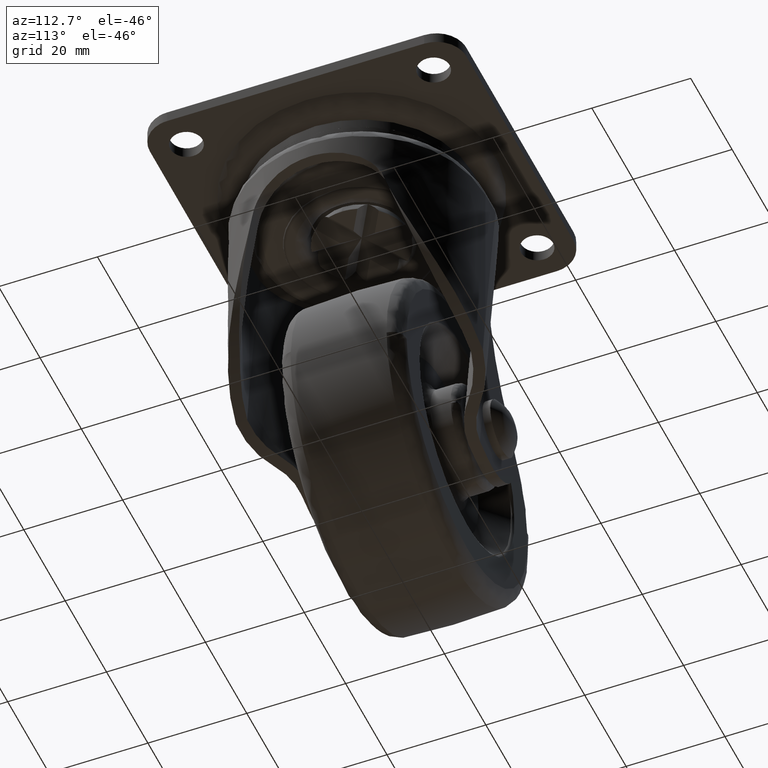
[diagram: clean part render]
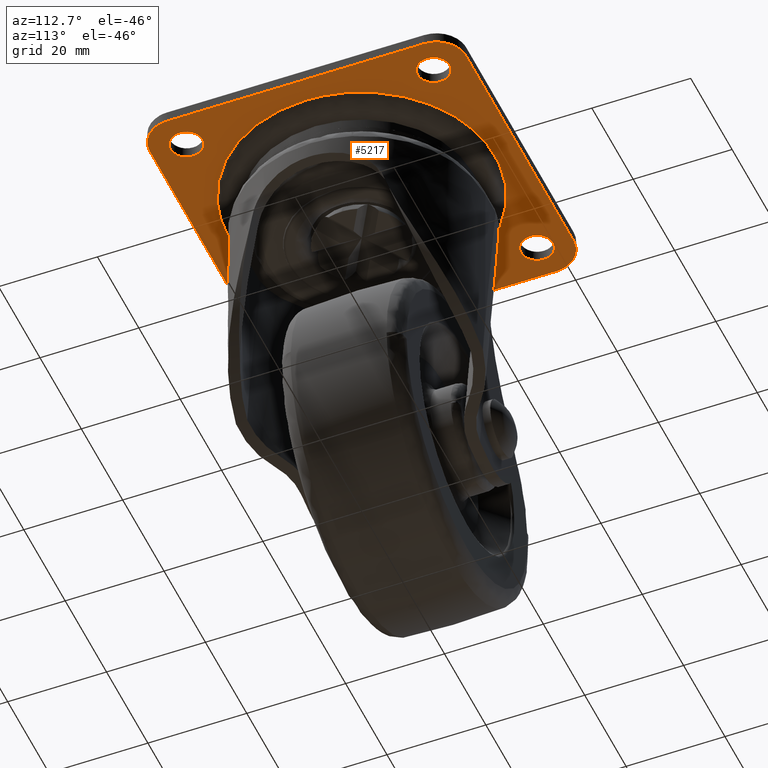
[diagram: same view with one face highlighted and labeled with its STEP entity id]
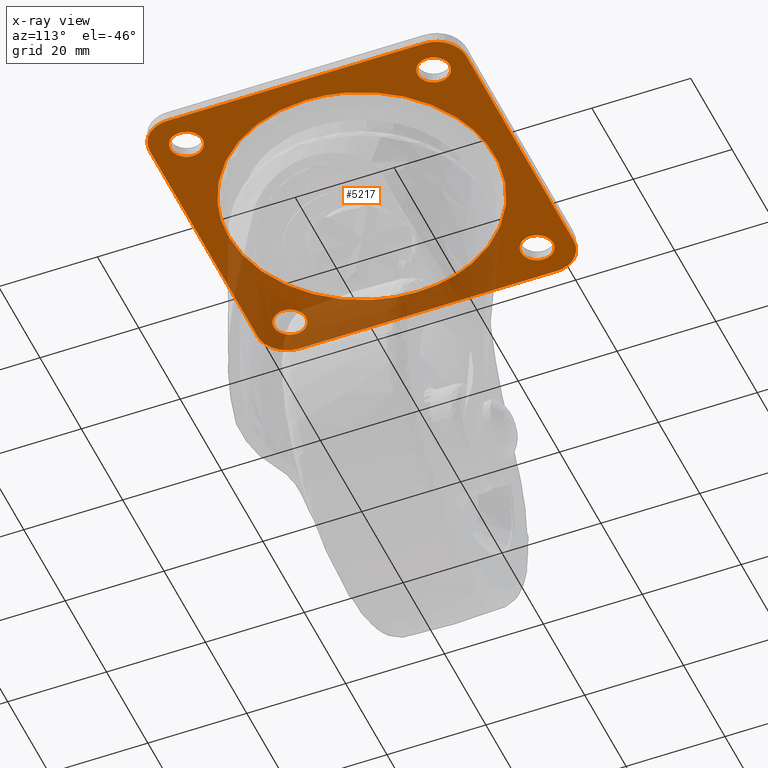
[diagram: x-ray of the same camera — body ghosted, the highlighted face saturated]
A machine part, auxiliary view. The second image highlights one B-rep face of the part: STEP entity #5217.
The next image is the same camera in x-ray: the body ghosted, the highlighted face saturated — about 28% of this face is hidden behind the body in this view.
In plain terms, the highlighted face is a freeform B-spline surface patch.
Its self-contained STEP definition (entity closure, byte-faithful):
#2984=CARTESIAN_POINT('',(-22.642533498394322,27.237152021713129,-2.299999999999970));
#2985=VERTEX_POINT('',#2984);
#2991=CARTESIAN_POINT('',(-21.750000000000000,25.0,-2.299999999999970));
#2992=VERTEX_POINT('',#2991);
#2993=CARTESIAN_POINT('',(-21.750000000000000,25.0,-2.299999999999970));
#2994=CARTESIAN_POINT('',(-21.749833372556409,25.334162699842921,-2.299999999999967));
#2995=CARTESIAN_POINT('',(-21.825993726355179,25.822397350986229,-2.299999999999975));
#2996=CARTESIAN_POINT('',(-22.131594805224950,26.588280265589368,-2.299999999999968));
#2997=CARTESIAN_POINT('',(-22.412366472387660,26.994885645072468,-2.299999999999969));
#2998=CARTESIAN_POINT('',(-22.642533498394322,27.237152021713129,-2.299999999999970));
#2999=B_SPLINE_CURVE_WITH_KNOTS('',3,(#2993,#2994,#2995,#2996,#2997,#2998),.UNSPECIFIED.,.F.,.U.,(4,1,1,4),(0.000000027795335,1.002418451158211,1.465055013724505,2.467473437042106),.UNSPECIFIED.);
#3000=EDGE_CURVE('',#2992,#2985,#2999,.T.);
#3002=CARTESIAN_POINT('',(-24.999998443681442,21.750000000000380,-2.299999999999970));
#3003=VERTEX_POINT('',#3002);
#3004=CARTESIAN_POINT('',(-24.999998443681442,21.750000000000380,-2.299999999999970));
#3005=CARTESIAN_POINT('',(-24.800583318305499,21.749988277209280,-2.299999999999968));
#3006=CARTESIAN_POINT('',(-24.348568035901049,21.791704374461268,-2.299999999999970));
#3007=CARTESIAN_POINT('',(-23.632587528414192,22.013606887123039,-2.299999999999975));
#3008=CARTESIAN_POINT('',(-22.935869289379230,22.442936852677651,-2.299999999999961));
#3009=CARTESIAN_POINT('',(-22.381699967731109,23.025036759530710,-2.299999999999974));
#3010=CARTESIAN_POINT('',(-22.024780111205072,23.637543365035601,-2.299999999999977));
#3011=CARTESIAN_POINT('',(-21.802965484931089,24.295413505065749,-2.299999999999978));
#3012=CARTESIAN_POINT('',(-21.749948970227479,24.747404505652320,-2.299999999999960));
#3013=CARTESIAN_POINT('',(-21.750000000000000,25.0,-2.299999999999970));
#3014=B_SPLINE_CURVE_WITH_KNOTS('',3,(#3004,#3005,#3006,#3007,#3008,#3009,#3010,#3011,#3012,#3013),.UNSPECIFIED.,.F.,.U.,(4,1,1,1,1,1,1,4),(0.000000129885724,0.598253617086502,1.356047946428142,2.233517468719373,3.031137934665880,3.749071260431550,4.347337861050842,5.105119217184440),.UNSPECIFIED.);
#3015=EDGE_CURVE('',#3003,#2992,#3014,.T.);
#3017=CARTESIAN_POINT('',(-28.250000000000000,25.0,-2.299999999999970));
#3018=VERTEX_POINT('',#3017);
#3019=CARTESIAN_POINT('',(-28.250000000000000,25.0,-2.299999999999970));
#3020=CARTESIAN_POINT('',(-28.250032941452659,24.773993839169979,-2.299999999999967));
#3021=CARTESIAN_POINT('',(-28.202669059314498,24.321988237934580,-2.299999999999977));
#3022=CARTESIAN_POINT('',(-28.017493402413521,23.749692678839029,-2.299999999999968));
#3023=CARTESIAN_POINT('',(-27.738083256626791,23.219134874316659,-2.299999999999969));
#3024=CARTESIAN_POINT('',(-27.395408190349560,22.774457673520850,-2.299999999999968));
#3025=CARTESIAN_POINT('',(-26.865632582315889,22.305943723624772,-2.299999999999976));
#3026=CARTESIAN_POINT('',(-26.089967119584738,21.878905457931630,-2.299999999999964));
#3027=CARTESIAN_POINT('',(-25.398874184129991,21.749655025581951,-2.299999999999976));
#3028=CARTESIAN_POINT('',(-24.999998443681442,21.750000000000380,-2.299999999999970));
#3029=B_SPLINE_CURVE_WITH_KNOTS('',3,(#3019,#3020,#3021,#3022,#3023,#3024,#3025,#3026,#3027,#3028),.UNSPECIFIED.,.F.,.U.,(4,1,1,1,1,1,1,4),(0.000000129358934,0.678017504278303,1.356048411924330,1.794779370539797,2.472805401416779,3.031138977244938,3.908608971987584,5.105120971529188),.UNSPECIFIED.);
#3030=EDGE_CURVE('',#3018,#3003,#3029,.T.);
#3032=CARTESIAN_POINT('',(-27.098661835438790,27.481556163859111,-2.299999999999970));
#3033=VERTEX_POINT('',#3032);
#3034=CARTESIAN_POINT('',(-27.098661835438790,27.481556163859111,-2.299999999999970));
#3035=CARTESIAN_POINT('',(-27.323314699063481,27.291697855888980,-2.299999999999973));
#3036=CARTESIAN_POINT('',(-27.680706776020401,26.894520778269619,-2.299999999999967));
#3037=CARTESIAN_POINT('',(-28.125285729443981,26.058595761632802,-2.299999999999976));
#3038=CARTESIAN_POINT('',(-28.250412246794749,25.411853311195291,-2.299999999999962));
#3039=CARTESIAN_POINT('',(-28.250000000000000,25.0,-2.299999999999970));
#3040=B_SPLINE_CURVE_WITH_KNOTS('',3,(#3034,#3035,#3036,#3037,#3038,#3039),.UNSPECIFIED.,.F.,.U.,(4,1,1,4),(0.000000042722192,0.882385960396109,1.588274068758099,2.823627168495734),.UNSPECIFIED.);
#3041=EDGE_CURVE('',#3033,#3018,#3040,.T.);
#3076=CARTESIAN_POINT('',(-25.000001556318612,28.249999999999631,-2.299999999999970));
#3077=VERTEX_POINT('',#3076);
#3078=CARTESIAN_POINT('',(-25.000001556318612,28.249999999999631,-2.299999999999970));
#3079=CARTESIAN_POINT('',(-25.308969950494600,28.250122144379610,-2.299999999999967));
#3080=CARTESIAN_POINT('',(-25.807964670948149,28.178270676319599,-2.299999999999975));
#3081=CARTESIAN_POINT('',(-26.518913575425291,27.900093556983659,-2.299999999999966));
#3082=CARTESIAN_POINT('',(-26.899089176861310,27.650417883150109,-2.299999999999975));
#3083=CARTESIAN_POINT('',(-27.098661835438790,27.481556163859111,-2.299999999999970));
#3084=B_SPLINE_CURVE_WITH_KNOTS('',3,(#3078,#3079,#3080,#3081,#3082,#3083),.UNSPECIFIED.,.F.,.U.,(4,1,1,4),(0.000000020407876,0.926877939616948,1.497245588589458,2.281527057243167),.UNSPECIFIED.);
#3085=EDGE_CURVE('',#3077,#3033,#3084,.T.);
#3087=CARTESIAN_POINT('',(-22.642533498394322,27.237152021713129,-2.299999999999970));
#3088=CARTESIAN_POINT('',(-22.822163040818889,27.426533098386109,-2.299999999999966));
#3089=CARTESIAN_POINT('',(-23.184752669124229,27.726298557557090,-2.299999999999980));
#3090=CARTESIAN_POINT('',(-23.969919525250280,28.130816111558740,-2.299999999999962));
#3091=CARTESIAN_POINT('',(-24.587804633331920,28.250359918849171,-2.299999999999976));
#3092=CARTESIAN_POINT('',(-25.000001556318612,28.249999999999631,-2.299999999999970));
#3093=B_SPLINE_CURVE_WITH_KNOTS('',3,(#3087,#3088,#3089,#3090,#3091,#3092),.UNSPECIFIED.,.F.,.U.,(4,1,1,4),(0.000000034382929,0.783054977539373,1.401242450408254,2.637648015211993),.UNSPECIFIED.);
#3094=EDGE_CURVE('',#2985,#3077,#3093,.T.);
#3424=CARTESIAN_POINT('',(27.357466501605689,27.237152021713129,-2.299999999999970));
#3425=VERTEX_POINT('',#3424);
#3431=CARTESIAN_POINT('',(28.250000000000000,25.0,-2.299999999999970));
#3432=VERTEX_POINT('',#3431);
#3433=CARTESIAN_POINT('',(28.250000000000000,25.0,-2.299999999999970));
#3434=CARTESIAN_POINT('',(28.250161934600179,25.334156563406250,-2.299999999999978));
#3435=CARTESIAN_POINT('',(28.162005269630360,25.899510767175109,-2.299999999999952));
#3436=CARTESIAN_POINT('',(27.828285100511771,26.656401953524629,-2.299999999999985));
#3437=CARTESIAN_POINT('',(27.534436243969470,27.050744245560551,-2.299999999999958));
#3438=CARTESIAN_POINT('',(27.357466501605689,27.237152021713129,-2.299999999999970));
#3439=B_SPLINE_CURVE_WITH_KNOTS('',3,(#3433,#3434,#3435,#3436,#3437,#3438),.UNSPECIFIED.,.F.,.U.,(4,1,1,4),(0.000000027798188,1.002418451159595,1.696383592642972,2.467473437042086),.UNSPECIFIED.);
#3440=EDGE_CURVE('',#3432,#3425,#3439,.T.);
#3442=CARTESIAN_POINT('',(25.000001556318558,21.750000000000380,-2.299999999999970));
#3443=VERTEX_POINT('',#3442);
#3444=CARTESIAN_POINT('',(25.000001556318558,21.750000000000380,-2.299999999999970));
#3445=CARTESIAN_POINT('',(25.305780552339570,21.749904821586870,-2.299999999999971));
#3446=CARTESIAN_POINT('',(25.903985180287389,21.835023545438929,-2.299999999999971));
#3447=CARTESIAN_POINT('',(26.639899056914420,22.161223937044110,-2.299999999999971));
#3448=CARTESIAN_POINT('',(27.162886256679052,22.554235636515429,-2.299999999999969));
#3449=CARTESIAN_POINT('',(27.613367407097581,23.027257278118508,-2.299999999999980));
#3450=CARTESIAN_POINT('',(27.958211868427849,23.586902557103400,-2.299999999999953));
#3451=CARTESIAN_POINT('',(28.197025927360691,24.295418545045539,-2.299999999999996));
#3452=CARTESIAN_POINT('',(28.250050161298450,24.747405216757240,-2.299999999999952));
#3453=CARTESIAN_POINT('',(28.250000000000000,25.0,-2.299999999999970));
#3454=B_SPLINE_CURVE_WITH_KNOTS('',3,(#3444,#3445,#3446,#3447,#3448,#3449,#3450,#3451,#3452,#3453),.UNSPECIFIED.,.F.,.U.,(4,1,1,1,1,1,1,4),(0.000000129897531,0.917317125159927,1.794778753783697,2.393045285437042,2.871602017118461,3.749071260434029,4.347337861052288,5.105119217184448),.UNSPECIFIED.);
#3455=EDGE_CURVE('',#3443,#3432,#3454,.T.);
#3457=CARTESIAN_POINT('',(21.750000000000000,25.0,-2.299999999999970));
#3458=VERTEX_POINT('',#3457);
#3459=CARTESIAN_POINT('',(21.750000000000000,25.0,-2.299999999999970));
#3460=CARTESIAN_POINT('',(21.749959798010799,24.747405984334989,-2.299999999999975));
#3461=CARTESIAN_POINT('',(21.810718841856360,24.228927665897540,-2.299999999999965));
#3462=CARTESIAN_POINT('',(22.053403154603291,23.576040062151829,-2.299999999999971));
#3463=CARTESIAN_POINT('',(22.427925100526071,22.976542749141579,-2.299999999999976));
#3464=CARTESIAN_POINT('',(22.935858401670629,22.442930932101550,-2.299999999999965));
#3465=CARTESIAN_POINT('',(23.564064649671689,22.055859806736201,-2.299999999999950));
#3466=CARTESIAN_POINT('',(24.268851426011128,21.808640550783320,-2.300000000000002));
#3467=CARTESIAN_POINT('',(24.720810105208219,21.749908415543619,-2.299999999999947));
#3468=CARTESIAN_POINT('',(25.000001556318558,21.750000000000380,-2.299999999999970));
#3469=B_SPLINE_CURVE_WITH_KNOTS('',3,(#3459,#3460,#3461,#3462,#3463,#3464,#3465,#3466,#3467,#3468),.UNSPECIFIED.,.F.,.U.,(4,1,1,1,1,1,1,4),(0.000000129350077,0.757782870994892,1.555475103140813,2.073982149825509,2.871603005557415,3.749072548475481,4.267572296697062,5.105120971529186),.UNSPECIFIED.);
#3470=EDGE_CURVE('',#3458,#3443,#3469,.T.);
#3472=CARTESIAN_POINT('',(22.901338164561221,27.481556163859111,-2.299999999999970));
#3473=VERTEX_POINT('',#3472);
#3474=CARTESIAN_POINT('',(22.901338164561221,27.481556163859111,-2.299999999999970));
#3475=CARTESIAN_POINT('',(22.654168478821290,27.272745586756670,-2.299999999999974));
#3476=CARTESIAN_POINT('',(22.360393302737162,26.937045590287880,-2.299999999999964));
#3477=CARTESIAN_POINT('',(22.026194172158451,26.347709585266070,-2.299999999999975));
#3478=CARTESIAN_POINT('',(21.811431322060649,25.764697750772498,-2.299999999999968));
#3479=CARTESIAN_POINT('',(21.749934494472289,25.264719810440582,-2.299999999999959));
#3480=CARTESIAN_POINT('',(21.750000000000000,25.0,-2.299999999999970));
#3481=B_SPLINE_CURVE_WITH_KNOTS('',3,(#3474,#3475,#3476,#3477,#3478,#3479,#3480),.UNSPECIFIED.,.F.,.U.,(4,1,1,1,4),(0.000000042722417,0.970623711997469,1.323587565707149,2.029479767953816,2.823627168495710),.UNSPECIFIED.);
#3482=EDGE_CURVE('',#3473,#3458,#3481,.T.);
#3518=CARTESIAN_POINT('',(24.999998443681399,28.249999999999631,-2.299999999999970));
#3519=VERTEX_POINT('',#3518);
#3520=CARTESIAN_POINT('',(24.999998443681399,28.249999999999631,-2.299999999999970));
#3521=CARTESIAN_POINT('',(24.595928606390778,28.250396539744631,-2.299999999999971));
#3522=CARTESIAN_POINT('',(23.835765945162319,28.106178037289791,-2.299999999999971));
#3523=CARTESIAN_POINT('',(23.173411843830920,27.711936526556588,-2.299999999999972));
#3524=CARTESIAN_POINT('',(22.901338164561221,27.481556163859111,-2.299999999999970));
#3525=B_SPLINE_CURVE_WITH_KNOTS('',3,(#3520,#3521,#3522,#3523,#3524),.UNSPECIFIED.,.F.,.U.,(4,1,4),(0.000000020407681,1.212057330687526,2.281527057243159),.UNSPECIFIED.);
#3526=EDGE_CURVE('',#3519,#3473,#3525,.T.);
#3528=CARTESIAN_POINT('',(27.357466501605689,27.237152021713129,-2.299999999999970));
#3529=CARTESIAN_POINT('',(27.121180051610139,27.486436022137980,-2.299999999999975));
#3530=CARTESIAN_POINT('',(26.723283493371589,27.790441885091060,-2.299999999999966));
#3531=CARTESIAN_POINT('',(25.920244797092391,28.153744410354840,-2.299999999999967));
#3532=CARTESIAN_POINT('',(25.384713967757371,28.250300196792370,-2.299999999999972));
#3533=CARTESIAN_POINT('',(24.999998443681399,28.249999999999631,-2.299999999999970));
#3534=B_SPLINE_CURVE_WITH_KNOTS('',3,(#3528,#3529,#3530,#3531,#3532,#3533),.UNSPECIFIED.,.F.,.U.,(4,1,1,4),(0.000000034382978,1.030333715074796,1.483665216523169,2.637648015211989),.UNSPECIFIED.);
#3535=EDGE_CURVE('',#3425,#3519,#3534,.T.);
#3630=CARTESIAN_POINT('',(27.357466501605689,-22.762847978286871,-2.299999999999970));
#3631=VERTEX_POINT('',#3630);
#3637=CARTESIAN_POINT('',(28.250000000000000,-25.0,-2.299999999999970));
#3638=VERTEX_POINT('',#3637);
#3639=CARTESIAN_POINT('',(28.250000000000000,-25.0,-2.299999999999970));
#3640=CARTESIAN_POINT('',(28.250160084920019,-24.665845122996359,-2.299999999999972));
#3641=CARTESIAN_POINT('',(28.162011497715969,-24.100484406182009,-2.299999999999971));
#3642=CARTESIAN_POINT('',(27.828276542150949,-23.343604717283242,-2.299999999999971));
#3643=CARTESIAN_POINT('',(27.534442529197289,-22.949250595432929,-2.299999999999968));
#3644=CARTESIAN_POINT('',(27.357466501605689,-22.762847978286871,-2.299999999999970));
#3645=B_SPLINE_CURVE_WITH_KNOTS('',3,(#3639,#3640,#3641,#3642,#3643,#3644),.UNSPECIFIED.,.F.,.U.,(4,1,1,4),(0.000000027797504,1.002418451159121,1.696383592642605,2.467473437042107),.UNSPECIFIED.);
#3646=EDGE_CURVE('',#3638,#3631,#3645,.T.);
#3648=CARTESIAN_POINT('',(25.000001556318558,-28.249999999999631,-2.299999999999970));
#3649=VERTEX_POINT('',#3648);
#3650=CARTESIAN_POINT('',(25.000001556318558,-28.249999999999631,-2.299999999999970));
#3651=CARTESIAN_POINT('',(25.372282556647889,-28.250248698741011,-2.299999999999972));
#3652=CARTESIAN_POINT('',(26.063418997472510,-28.129915764609560,-2.299999999999971));
#3653=CARTESIAN_POINT('',(26.916814173354961,-27.673781181124902,-2.299999999999977));
#3654=CARTESIAN_POINT('',(27.469692097872020,-27.147221730701268,-2.299999999999971));
#3655=CARTESIAN_POINT('',(27.857927776529440,-26.588718997499029,-2.299999999999963));
#3656=CARTESIAN_POINT('',(28.161507554042341,-25.903944579762879,-2.299999999999947));
#3657=CARTESIAN_POINT('',(28.250172371780550,-25.332379191373018,-2.300000000000015));
#3658=CARTESIAN_POINT('',(28.250000000000000,-25.0,-2.299999999999970));
#3659=B_SPLINE_CURVE_WITH_KNOTS('',3,(#3650,#3651,#3652,#3653,#3654,#3655,#3656,#3657,#3658),.UNSPECIFIED.,.F.,.U.,(4,1,1,1,1,1,4),(0.000000129885574,1.116742398743713,2.073981437666221,2.871602017113295,3.390108058884203,4.108033918231977,5.105119217184552),.UNSPECIFIED.);
#3660=EDGE_CURVE('',#3649,#3638,#3659,.T.);
#3662=CARTESIAN_POINT('',(21.750000000000000,-25.0,-2.299999999999970));
#3663=VERTEX_POINT('',#3662);
#3664=CARTESIAN_POINT('',(21.750000000000000,-25.0,-2.299999999999970));
#3665=CARTESIAN_POINT('',(21.749959923130302,-25.252593897346820,-2.299999999999974));
#3666=CARTESIAN_POINT('',(21.810726211805520,-25.771066263312960,-2.299999999999961));
#3667=CARTESIAN_POINT('',(22.104673296633550,-26.562128933488250,-2.299999999999977));
#3668=CARTESIAN_POINT('',(22.553391836748698,-27.182958332901698,-2.299999999999963));
#3669=CARTESIAN_POINT('',(23.055771849014661,-27.621498962799340,-2.299999999999976));
#3670=CARTESIAN_POINT('',(23.576034815176651,-27.946608806913758,-2.299999999999963));
#3671=CARTESIAN_POINT('',(24.228931586045569,-28.189272423851051,-2.299999999999972));
#3672=CARTESIAN_POINT('',(24.747407068882460,-28.250044408522150,-2.299999999999971));
#3673=CARTESIAN_POINT('',(25.000001556318558,-28.249999999999631,-2.299999999999970));
#3674=B_SPLINE_CURVE_WITH_KNOTS('',3,(#3664,#3665,#3666,#3667,#3668,#3669,#3670,#3671,#3672,#3673),.UNSPECIFIED.,.F.,.U.,(4,1,1,1,1,1,1,4),(0.000000129345310,0.757782870990027,1.555475103136194,2.512716335749983,3.031138977239892,3.549646190903440,4.347339355923553,5.105120971529185),.UNSPECIFIED.);
#3675=EDGE_CURVE('',#3663,#3649,#3674,.T.);
#3677=CARTESIAN_POINT('',(22.901338164561221,-22.518443836140889,-2.299999999999970));
#3678=VERTEX_POINT('',#3677);
#3679=CARTESIAN_POINT('',(22.901338164561221,-22.518443836140889,-2.299999999999970));
#3680=CARTESIAN_POINT('',(22.744122639508120,-22.651382207780749,-2.299999999999970));
#3681=CARTESIAN_POINT('',(22.434403757660728,-22.968389836782990,-2.299999999999971));
#3682=CARTESIAN_POINT('',(22.099051494484169,-23.491417831237069,-2.299999999999970));
#3683=CARTESIAN_POINT('',(21.825307250807601,-24.176534365583262,-2.299999999999971));
#3684=CARTESIAN_POINT('',(21.749862569758388,-24.676440659554650,-2.299999999999968));
#3685=CARTESIAN_POINT('',(21.750000000000000,-25.0,-2.299999999999970));
#3686=B_SPLINE_CURVE_WITH_KNOTS('',3,(#3679,#3680,#3681,#3682,#3683,#3684,#3685),.UNSPECIFIED.,.F.,.U.,(4,1,1,1,4),(0.000000042718900,0.617666205064548,1.323587565705826,1.853003499204243,2.823627168495729),.UNSPECIFIED.);
#3687=EDGE_CURVE('',#3678,#3663,#3686,.T.);
#3722=CARTESIAN_POINT('',(24.999998443681399,-21.750000000000380,-2.299999999999970));
#3723=VERTEX_POINT('',#3722);
#3724=CARTESIAN_POINT('',(24.999998443681399,-21.750000000000380,-2.299999999999970));
#3725=CARTESIAN_POINT('',(24.691030223584391,-21.749877909228211,-2.299999999999973));
#3726=CARTESIAN_POINT('',(24.192035111925311,-21.821729523978750,-2.299999999999965));
#3727=CARTESIAN_POINT('',(23.481086694019670,-22.099906102441331,-2.299999999999980));
#3728=CARTESIAN_POINT('',(23.100910903951139,-22.349582518629930,-2.299999999999964));
#3729=CARTESIAN_POINT('',(22.901338164561221,-22.518443836140889,-2.299999999999970));
#3730=B_SPLINE_CURVE_WITH_KNOTS('',3,(#3724,#3725,#3726,#3727,#3728,#3729),.UNSPECIFIED.,.F.,.U.,(4,1,1,4),(0.000000020409035,0.926877939617549,1.497245588589670,2.281527057243156),.UNSPECIFIED.);
#3731=EDGE_CURVE('',#3723,#3678,#3730,.T.);
#3733=CARTESIAN_POINT('',(27.357466501605689,-22.762847978286871,-2.299999999999970));
#3734=CARTESIAN_POINT('',(27.092875239846951,-22.483560315595859,-2.299999999999965));
#3735=CARTESIAN_POINT('',(26.665432479913449,-22.169857343672071,-2.299999999999975));
#3736=CARTESIAN_POINT('',(25.851609335931428,-21.832376848633899,-2.299999999999964));
#3737=CARTESIAN_POINT('',(25.357221155126961,-21.749763469188430,-2.299999999999979));
#3738=CARTESIAN_POINT('',(24.999998443681399,-21.750000000000380,-2.299999999999970));
#3739=B_SPLINE_CURVE_WITH_KNOTS('',3,(#3733,#3734,#3735,#3736,#3737,#3738),.UNSPECIFIED.,.F.,.U.,(4,1,1,4),(0.000000034383770,1.153982833021026,1.566091231828655,2.637648015211964),.UNSPECIFIED.);
#3740=EDGE_CURVE('',#3631,#3723,#3739,.T.);
#3836=CARTESIAN_POINT('',(-22.642533498394322,-22.762847978286871,-2.299999999999970));
#3837=VERTEX_POINT('',#3836);
#3843=CARTESIAN_POINT('',(-21.750000000000000,-25.0,-2.299999999999970));
#3844=VERTEX_POINT('',#3843);
#3845=CARTESIAN_POINT('',(-21.750000000000000,-25.0,-2.299999999999970));
#3846=CARTESIAN_POINT('',(-21.749803939906041,-24.665829703779121,-2.299999999999969));
#3847=CARTESIAN_POINT('',(-21.826034356631151,-24.177617531851840,-2.299999999999971));
#3848=CARTESIAN_POINT('',(-22.131557382400779,-23.411705109644679,-2.299999999999970));
#3849=CARTESIAN_POINT('',(-22.412389224026381,-23.005125976173829,-2.299999999999972));
#3850=CARTESIAN_POINT('',(-22.642533498394322,-22.762847978286871,-2.299999999999970));
#3851=B_SPLINE_CURVE_WITH_KNOTS('',3,(#3845,#3846,#3847,#3848,#3849,#3850),.UNSPECIFIED.,.F.,.U.,(4,1,1,4),(0.000000027796091,1.002418451158534,1.465055013724636,2.467473437042120),.UNSPECIFIED.);
#3852=EDGE_CURVE('',#3844,#3837,#3851,.T.);
#3854=CARTESIAN_POINT('',(-24.999998443681431,-28.249999999999631,-2.299999999999970));
#3855=VERTEX_POINT('',#3854);
#3856=CARTESIAN_POINT('',(-24.999998443681431,-28.249999999999631,-2.299999999999970));
#3857=CARTESIAN_POINT('',(-24.773992263852879,-28.250033888610140,-2.299999999999969));
#3858=CARTESIAN_POINT('',(-24.321988061686689,-28.202667109809681,-2.299999999999970));
#3859=CARTESIAN_POINT('',(-23.749688008356500,-28.017499156592191,-2.299999999999979));
#3860=CARTESIAN_POINT('',(-23.242720362746049,-27.750487886265649,-2.299999999999954));
#3861=CARTESIAN_POINT('',(-22.837107171172729,-27.445777123327439,-2.299999999999995));
#3862=CARTESIAN_POINT('',(-22.386636661050431,-26.972737055800248,-2.299999999999939));
#3863=CARTESIAN_POINT('',(-22.055859974637091,-26.435946878150279,-2.300000000000009));
#3864=CARTESIAN_POINT('',(-21.808640315577168,-25.731147978030599,-2.299999999999935));
#3865=CARTESIAN_POINT('',(-21.749908937583140,-25.279191559764460,-2.299999999999995));
#3866=CARTESIAN_POINT('',(-21.750000000000000,-25.0,-2.299999999999970));
#3867=B_SPLINE_CURVE_WITH_KNOTS('',3,(#3856,#3857,#3858,#3859,#3860,#3861,#3862,#3863,#3864,#3865,#3866),.UNSPECIFIED.,.F.,.U.,(4,1,1,1,1,1,1,1,4),(0.000000129879840,0.678017271438603,1.356047946423100,1.794778753773757,2.393045285429950,2.871602017113065,3.749071260431163,4.267570829294035,5.105119217184445),.UNSPECIFIED.);
#3868=EDGE_CURVE('',#3855,#3844,#3867,.T.);
#3870=CARTESIAN_POINT('',(-28.250000000000000,-25.0,-2.299999999999970));
#3871=VERTEX_POINT('',#3870);
#3872=CARTESIAN_POINT('',(-28.250000000000000,-25.0,-2.299999999999970));
#3873=CARTESIAN_POINT('',(-28.250299331508440,-25.372295505898879,-2.299999999999969));
#3874=CARTESIAN_POINT('',(-28.150621477154509,-25.943741516207840,-2.299999999999968));
#3875=CARTESIAN_POINT('',(-27.784414568778189,-26.730513783447961,-2.299999999999973));
#3876=CARTESIAN_POINT('',(-27.281026597695291,-27.375753097444690,-2.299999999999969));
#3877=CARTESIAN_POINT('',(-26.562119533189929,-27.895338476909160,-2.299999999999964));
#3878=CARTESIAN_POINT('',(-25.771067222185039,-28.189275390333290,-2.299999999999977));
#3879=CARTESIAN_POINT('',(-25.252591658476408,-28.250042409506928,-2.299999999999973));
#3880=CARTESIAN_POINT('',(-24.999998443681431,-28.249999999999631,-2.299999999999970));
#3881=B_SPLINE_CURVE_WITH_KNOTS('',3,(#3872,#3873,#3874,#3875,#3876,#3877,#3878,#3879,#3880),.UNSPECIFIED.,.F.,.U.,(4,1,1,1,1,1,4),(0.000000129338470,1.116742781929730,1.715012225496796,2.592404684862942,3.549646190902182,4.347339355923139,5.105120971529193),.UNSPECIFIED.);
#3882=EDGE_CURVE('',#3871,#3855,#3881,.T.);
#3884=CARTESIAN_POINT('',(-27.098661835438790,-22.518443836140889,-2.299999999999970));
#3885=VERTEX_POINT('',#3884);
#3886=CARTESIAN_POINT('',(-27.098661835438790,-22.518443836140889,-2.299999999999970));
#3887=CARTESIAN_POINT('',(-27.289591815451420,-22.679846758980950,-2.299999999999976));
#3888=CARTESIAN_POINT('',(-27.593375555360360,-23.003838107130431,-2.299999999999958));
#3889=CARTESIAN_POINT('',(-27.932793774747999,-23.557709614186809,-2.299999999999983));
#3890=CARTESIAN_POINT('',(-28.181634731141688,-24.205912167751809,-2.299999999999971));
#3891=CARTESIAN_POINT('',(-28.250106120439469,-24.705861695623529,-2.299999999999961));
#3892=CARTESIAN_POINT('',(-28.250000000000000,-25.0,-2.299999999999970));
#3893=B_SPLINE_CURVE_WITH_KNOTS('',3,(#3886,#3887,#3888,#3889,#3890,#3891,#3892),.UNSPECIFIED.,.F.,.U.,(4,1,1,1,4),(0.000000042716866,0.750026710437992,1.323587565705008,1.941241250848059,2.823627168495706),.UNSPECIFIED.);
#3894=EDGE_CURVE('',#3885,#3871,#3893,.T.);
#3930=CARTESIAN_POINT('',(-25.000001556318619,-21.750000000000380,-2.299999999999970));
#3931=VERTEX_POINT('',#3930);
#3932=CARTESIAN_POINT('',(-25.000001556318619,-21.750000000000380,-2.299999999999970));
#3933=CARTESIAN_POINT('',(-25.261429731589971,-21.749938346592380,-2.299999999999970));
#3934=CARTESIAN_POINT('',(-25.760469835052589,-21.810543699310848,-2.299999999999970));
#3935=CARTESIAN_POINT('',(-26.478912668732232,-22.073592896802150,-2.299999999999980));
#3936=CARTESIAN_POINT('',(-26.899084340395170,-22.349586073396839,-2.299999999999957));
#3937=CARTESIAN_POINT('',(-27.098661835438790,-22.518443836140889,-2.299999999999970));
#3938=B_SPLINE_CURVE_WITH_KNOTS('',3,(#3932,#3933,#3934,#3935,#3936,#3937),.UNSPECIFIED.,.F.,.U.,(4,1,1,4),(0.000000020407628,0.784281489023802,1.497245588589500,2.281527057243150),.UNSPECIFIED.);
#3939=EDGE_CURVE('',#3931,#3885,#3938,.T.);
#3941=CARTESIAN_POINT('',(-22.642533498394322,-22.762847978286871,-2.299999999999970));
#3942=CARTESIAN_POINT('',(-22.907132391321550,-22.483576258127059,-2.299999999999972));
#3943=CARTESIAN_POINT('',(-23.368312838373139,-22.145066823322011,-2.299999999999969));
#3944=CARTESIAN_POINT('',(-24.189560668788712,-21.822728973188791,-2.299999999999971));
#3945=CARTESIAN_POINT('',(-24.684016064162151,-21.749861757832981,-2.299999999999971));
#3946=CARTESIAN_POINT('',(-25.000001556318619,-21.750000000000380,-2.299999999999970));
#3947=B_SPLINE_CURVE_WITH_KNOTS('',3,(#3941,#3942,#3943,#3944,#3945,#3946),.UNSPECIFIED.,.F.,.U.,(4,1,1,4),(0.000000034383485,1.153982833021223,1.689740916164996,2.637648015211969),.UNSPECIFIED.);
#3948=EDGE_CURVE('',#3837,#3931,#3947,.T.);
#4679=CARTESIAN_POINT('',(12.106346834411800,24.133718451986450,-2.300000000179725));
#4680=VERTEX_POINT('',#4679);
#4692=CARTESIAN_POINT('',(27.0,0.0,-2.300000000000000));
#4693=VERTEX_POINT('',#4692);
#4694=CARTESIAN_POINT('',(12.106346834411800,24.133718451986450,-2.300000000179725));
#4695=CARTESIAN_POINT('',(13.600692592827331,23.384295938915159,-2.300000000161695));
#4696=CARTESIAN_POINT('',(15.819948861896041,21.999270935777439,-2.300000000134906));
#4697=CARTESIAN_POINT('',(18.850507189544420,19.433495212310739,-2.300000000098345));
#4698=CARTESIAN_POINT('',(21.481916644108431,16.556575408664042,-2.300000000066591));
#4699=CARTESIAN_POINT('',(23.737651297087730,13.088472801080760,-2.300000000039340));
#4700=CARTESIAN_POINT('',(25.369984247012649,9.465395276573892,-2.300000000019728));
#4701=CARTESIAN_POINT('',(26.635796431750361,5.248268167121109,-2.300000000004371));
#4702=CARTESIAN_POINT('',(27.000415830159120,2.021656762967958,-2.299999999999996));
#4703=CARTESIAN_POINT('',(27.0,0.0,-2.300000000000000));
#4704=B_SPLINE_CURVE_WITH_KNOTS('',3,(#4694,#4695,#4696,#4697,#4698,#4699,#4700,#4701,#4702,#4703),.UNSPECIFIED.,.F.,.U.,(4,1,1,1,1,1,1,4),(0.000000023103198,5.015161442306710,7.814325348408133,11.896444485403720,16.678323693942922,20.177279451036100,23.792871945430960,29.857719793507510),.UNSPECIFIED.);
#4705=EDGE_CURVE('',#4680,#4693,#4704,.T.);
#4707=CARTESIAN_POINT('',(-0.000001086380795,-26.999999999999979,-2.300000000000000));
#4708=VERTEX_POINT('',#4707);
#4709=CARTESIAN_POINT('',(27.0,0.0,-2.300000000000000));
#4710=CARTESIAN_POINT('',(27.000037412710132,-1.159690250563639,-2.300000000000000));
#4711=CARTESIAN_POINT('',(26.857456848094682,-3.368602805811807,-2.300000000000001));
#4712=CARTESIAN_POINT('',(26.167987978145032,-7.010177408211161,-2.299999999999998));
#4713=CARTESIAN_POINT('',(25.042448326228101,-10.314756753791411,-2.300000000000010));
#4714=CARTESIAN_POINT('',(23.362038537472230,-13.678729502954710,-2.299999999999988));
#4715=CARTESIAN_POINT('',(21.454718582702750,-16.533278361129440,-2.299999999999987));
#4716=CARTESIAN_POINT('',(19.100524636649151,-19.179198938195562,-2.300000000000019));
#4717=CARTESIAN_POINT('',(16.648938603485970,-21.333604526563530,-2.299999999999988));
#4718=CARTESIAN_POINT('',(13.690317872757840,-23.376944422329430,-2.300000000000007));
#4719=CARTESIAN_POINT('',(10.715976241423650,-24.862677908364940,-2.299999999999995));
#4720=CARTESIAN_POINT('',(7.586537275024717,-25.960698210997890,-2.300000000000003));
#4721=CARTESIAN_POINT('',(4.252137381988680,-26.763430632723320,-2.299999999999996));
#4722=CARTESIAN_POINT('',(1.601479280457422,-27.000167751772100,-2.300000000000001));
#4723=CARTESIAN_POINT('',(-0.000001086380795,-26.999999999999979,-2.300000000000000));
#4724=B_SPLINE_CURVE_WITH_KNOTS('',3,(#4709,#4710,#4711,#4712,#4713,#4714,#4715,#4716,#4717,#4718,#4719,#4720,#4721,#4722,#4723),.UNSPECIFIED.,.F.,.U.,(4,1,1,1,1,1,1,1,1,1,1,1,4),(0.000000045141718,3.479070776698414,6.626791741538746,11.099903048559190,13.916298593690730,17.892407646665632,21.371426816084121,24.519158546019469,27.666916795390769,32.140017739939168,34.459403220809179,37.607155948431398,42.411567967100233),.UNSPECIFIED.);
#4725=EDGE_CURVE('',#4693,#4708,#4724,.T.);
#4727=CARTESIAN_POINT('',(-27.0,0.0,-2.300000000000000));
#4728=VERTEX_POINT('',#4727);
#4729=CARTESIAN_POINT('',(-0.000001086380795,-26.999999999999979,-2.300000000000000));
#4730=CARTESIAN_POINT('',(-1.711928797254476,-27.000198075057909,-2.299999999999998));
#4731=CARTESIAN_POINT('',(-4.638692169945371,-26.720678718968269,-2.300000000000003));
#4732=CARTESIAN_POINT('',(-8.117563561602898,-25.803680414629412,-2.300000000000002));
#4733=CARTESIAN_POINT('',(-10.856552012311580,-24.766381859480809,-2.300000000000002));
#4734=CARTESIAN_POINT('',(-13.586642411757330,-23.423569998030949,-2.300000000000000));
#4735=CARTESIAN_POINT('',(-16.901676830956379,-21.208674127693939,-2.299999999999994));
#4736=CARTESIAN_POINT('',(-19.655930439413272,-18.634309296199490,-2.300000000000021));
#4737=CARTESIAN_POINT('',(-21.856978521721409,-15.935238502665390,-2.299999999999992));
#4738=CARTESIAN_POINT('',(-23.645245020922161,-13.205041694644040,-2.300000000000033));
#4739=CARTESIAN_POINT('',(-25.051440205997999,-10.255301659009680,-2.299999999999996));
#4740=CARTESIAN_POINT('',(-26.031477355984538,-7.318723834896690,-2.300000000000000));
#4741=CARTESIAN_POINT('',(-26.778208473226730,-4.086462940091889,-2.300000000000007));
#4742=CARTESIAN_POINT('',(-27.000176495371420,-1.601483269287824,-2.299999999999997));
#4743=CARTESIAN_POINT('',(-27.0,0.0,-2.300000000000000));
#4744=B_SPLINE_CURVE_WITH_KNOTS('',3,(#4729,#4730,#4731,#4732,#4733,#4734,#4735,#4736,#4737,#4738,#4739,#4740,#4741,#4742,#4743),.UNSPECIFIED.,.F.,.U.,(4,1,1,1,1,1,1,1,1,1,1,1,4),(0.000000045320689,5.135754602553270,8.780513064594096,10.768562885628651,13.916298191869121,17.892407130269639,22.696810185859690,25.181842261566629,28.329595668789050,32.471356115677537,34.956420899017189,37.607154862495570,42.411566742493747),.UNSPECIFIED.);
#4745=EDGE_CURVE('',#4708,#4728,#4744,.T.);
#4747=CARTESIAN_POINT('',(-24.133718451986439,12.106346834411800,-2.300000000179725));
#4748=VERTEX_POINT('',#4747);
#4749=CARTESIAN_POINT('',(-27.0,0.0,-2.300000000000000));
#4750=CARTESIAN_POINT('',(-27.000253113634791,1.765404396627592,-2.299999999999983));
#4751=CARTESIAN_POINT('',(-26.723196723125859,4.576827755537400,-2.300000000017362));
#4752=CARTESIAN_POINT('',(-25.668788021327600,8.633728500243551,-2.300000000083466));
#4753=CARTESIAN_POINT('',(-24.749451170780691,10.879068321957741,-2.300000000141121));
#4754=CARTESIAN_POINT('',(-24.133718451986439,12.106346834411800,-2.300000000179725));
#4755=B_SPLINE_CURVE_WITH_KNOTS('',3,(#4749,#4750,#4751,#4752,#4753,#4754),.UNSPECIFIED.,.F.,.U.,(4,1,1,4),(2.966317E-009,5.296156456816415,8.434605332467731,12.553831850722760),.UNSPECIFIED.);
#4756=EDGE_CURVE('',#4728,#4748,#4755,.T.);
#4857=CARTESIAN_POINT('',(-24.133718451986439,12.106346834411800,-2.300000000179725));
#4858=CARTESIAN_POINT('',(-23.613767651803109,13.142943507299821,-2.300000000162722));
#4859=CARTESIAN_POINT('',(-22.495882112738659,15.053430704510101,-2.300000000132430));
#4860=CARTESIAN_POINT('',(-20.313908041265261,17.911320136089440,-2.300000000090444));
#4861=CARTESIAN_POINT('',(-17.999337081385612,20.218054961649269,-2.300000000060157));
#4862=CARTESIAN_POINT('',(-15.424581423584330,22.220294441934580,-2.300000000037581));
#4863=CARTESIAN_POINT('',(-12.418911308387679,24.091040870135661,-2.300000000020420));
#4864=CARTESIAN_POINT('',(-8.496409044130177,25.778890333726888,-2.300000000012801));
#4865=CARTESIAN_POINT('',(-4.393323857092758,26.732615921469570,-2.300000000020830));
#4866=CARTESIAN_POINT('',(-1.142563960270122,27.016916188512688,-2.300000000036463));
#4867=CARTESIAN_POINT('',(1.565455993685441,26.995733515003870,-2.300000000054569));
#4868=CARTESIAN_POINT('',(4.591288041089725,26.683223179460700,-2.300000000080461));
#4869=CARTESIAN_POINT('',(8.255959675808803,25.818229703102130,-2.300000000121507));
#4870=CARTESIAN_POINT('',(10.823007406262411,24.777599575639169,-2.300000000158559));
#4871=CARTESIAN_POINT('',(12.106346834411800,24.133718451986450,-2.300000000179725));
#4872=B_SPLINE_CURVE_WITH_KNOTS('',3,(#4857,#4858,#4859,#4860,#4861,#4862,#4863,#4864,#4865,#4866,#4867,#4868,#4869,#4870,#4871),.UNSPECIFIED.,.F.,.U.,(4,1,1,1,1,1,1,1,1,1,1,1,4),(0.000000045287813,3.479070726547619,6.626791645950128,10.768563041006280,13.253618905667610,16.401371553314199,21.371426507694480,26.010195646559168,28.992276730436888,31.145994467559269,34.128067451981813,38.104155676076722,42.411567354551707),.UNSPECIFIED.);
#4873=EDGE_CURVE('',#4748,#4680,#4872,.T.);
#5079=CARTESIAN_POINT('',(-35.196799875955577,35.196799875955577,-2.300000000000000));
#5080=CARTESIAN_POINT('',(35.196801592569351,35.196799875955577,-2.300000000000000));
#5081=CARTESIAN_POINT('',(-35.196799875955577,-35.196801592569351,-2.300000000000000));
#5082=CARTESIAN_POINT('',(35.196801592569351,-35.196801592569351,-2.300000000000000));
#5083=B_SPLINE_SURFACE_WITH_KNOTS('',1,1,((#5079,#5081),(#5080,#5082)),.UNSPECIFIED.,.F.,.F.,.U.,(2,2),(2,2),(0.0,70.393601468524935),(0.0,70.393601468524935),.UNSPECIFIED.);
#5084=CARTESIAN_POINT('',(26.0,32.0,-2.299999999999970));
#5085=VERTEX_POINT('',#5084);
#5086=CARTESIAN_POINT('',(-26.0,32.0,-2.299999999999970));
#5087=VERTEX_POINT('',#5086);
#5088=CARTESIAN_POINT('',(26.0,32.0,-2.299999999999970));
#5089=CARTESIAN_POINT('',(-26.0,32.0,-2.299999999999970));
#5090=QUASI_UNIFORM_CURVE('',1,(#5088,#5089),.UNSPECIFIED.,.F.,.U.);
#5091=EDGE_CURVE('',#5085,#5087,#5090,.T.);
#5092=ORIENTED_EDGE('',*,*,#5091,.F.);
#5093=CARTESIAN_POINT('',(32.0,26.0,-2.299999999999970));
#5094=VERTEX_POINT('',#5093);
#5095=CARTESIAN_POINT('',(32.0,26.0,-2.299999999999970));
#5096=CARTESIAN_POINT('',(32.000249285061891,26.564538702964200,-2.299999999999971));
#5097=CARTESIAN_POINT('',(31.884791184994789,27.374328265721090,-2.299999999999975));
#5098=CARTESIAN_POINT('',(31.470595590244891,28.531991049204048,-2.299999999999967));
#5099=CARTESIAN_POINT('',(30.989329174967889,29.393817232662560,-2.299999999999971));
#5100=CARTESIAN_POINT('',(30.233969260400560,30.302788988528960,-2.299999999999973));
#5101=CARTESIAN_POINT('',(29.279609345381839,31.086124341443519,-2.299999999999968));
#5102=CARTESIAN_POINT('',(28.150431284443801,31.645800964813560,-2.299999999999971));
#5103=CARTESIAN_POINT('',(27.030817167564070,31.940803828194039,-2.299999999999972));
#5104=CARTESIAN_POINT('',(26.343605387309310,32.000027509260022,-2.299999999999961));
#5105=CARTESIAN_POINT('',(26.0,32.0,-2.299999999999970));
#5106=B_SPLINE_CURVE_WITH_KNOTS('',3,(#5095,#5096,#5097,#5098,#5099,#5100,#5101,#5102,#5103,#5104,#5105),.UNSPECIFIED.,.F.,.U.,(4,1,1,1,1,1,1,1,4),(0.000000097206579,1.693514133704896,2.429842354125962,3.681599743778294,4.638814019047444,5.964135620152207,7.363159277778431,8.394018008947704,9.424837097255145),.UNSPECIFIED.);
#5107=EDGE_CURVE('',#5094,#5085,#5106,.T.);
#5108=ORIENTED_EDGE('',*,*,#5107,.F.);
#5109=CARTESIAN_POINT('',(32.0,-26.0,-2.299999999999970));
#5110=VERTEX_POINT('',#5109);
#5111=CARTESIAN_POINT('',(32.0,-26.0,-2.299999999999970));
#5112=CARTESIAN_POINT('',(32.0,26.0,-2.299999999999970));
#5113=QUASI_UNIFORM_CURVE('',1,(#5111,#5112),.UNSPECIFIED.,.F.,.U.);
#5114=EDGE_CURVE('',#5110,#5094,#5113,.T.);
#5115=ORIENTED_EDGE('',*,*,#5114,.F.);
#5116=CARTESIAN_POINT('',(26.0,-32.0,-2.299999999999970));
#5117=VERTEX_POINT('',#5116);
#5118=CARTESIAN_POINT('',(26.0,-32.0,-2.299999999999970));
#5119=CARTESIAN_POINT('',(26.564538702964200,-32.000249285061891,-2.299999999999971));
#5120=CARTESIAN_POINT('',(27.374328265721090,-31.884791184994789,-2.299999999999975));
#5121=CARTESIAN_POINT('',(28.531991049204048,-31.470595590244891,-2.299999999999967));
#5122=CARTESIAN_POINT('',(29.393817232662560,-30.989329174967889,-2.299999999999971));
#5123=CARTESIAN_POINT('',(30.302788988528960,-30.233969260400560,-2.299999999999973));
#5124=CARTESIAN_POINT('',(31.086124341443519,-29.279609345381839,-2.299999999999968));
#5125=CARTESIAN_POINT('',(31.645800964813560,-28.150431284443801,-2.299999999999971));
#5126=CARTESIAN_POINT('',(31.940803828194039,-27.030817167564070,-2.299999999999972));
#5127=CARTESIAN_POINT('',(32.000027509260022,-26.343605387309310,-2.299999999999961));
#5128=CARTESIAN_POINT('',(32.0,-26.0,-2.299999999999970));
#5129=B_SPLINE_CURVE_WITH_KNOTS('',3,(#5118,#5119,#5120,#5121,#5122,#5123,#5124,#5125,#5126,#5127,#5128),.UNSPECIFIED.,.F.,.U.,(4,1,1,1,1,1,1,1,4),(0.000000097206579,1.693514133704896,2.429842354125962,3.681599743778294,4.638814019047444,5.964135620152207,7.363159277778431,8.394018008947704,9.424837097255145),.UNSPECIFIED.);
#5130=EDGE_CURVE('',#5117,#5110,#5129,.T.);
#5131=ORIENTED_EDGE('',*,*,#5130,.F.);
#5132=CARTESIAN_POINT('',(-26.0,-32.0,-2.299999999999970));
#5133=VERTEX_POINT('',#5132);
#5134=CARTESIAN_POINT('',(-26.0,-32.0,-2.299999999999970));
#5135=CARTESIAN_POINT('',(26.0,-32.0,-2.299999999999970));
#5136=QUASI_UNIFORM_CURVE('',1,(#5134,#5135),.UNSPECIFIED.,.F.,.U.);
#5137=EDGE_CURVE('',#5133,#5117,#5136,.T.);
#5138=ORIENTED_EDGE('',*,*,#5137,.F.);
#5139=CARTESIAN_POINT('',(-32.0,-26.0,-2.299999999999970));
#5140=VERTEX_POINT('',#5139);
#5141=CARTESIAN_POINT('',(-32.0,-26.0,-2.299999999999970));
#5142=CARTESIAN_POINT('',(-32.000249285061891,-26.564538702964200,-2.299999999999971));
#5143=CARTESIAN_POINT('',(-31.884791184994789,-27.374328265721090,-2.299999999999975));
#5144=CARTESIAN_POINT('',(-31.470595590244891,-28.531991049204048,-2.299999999999967));
#5145=CARTESIAN_POINT('',(-30.989329174967889,-29.393817232662560,-2.299999999999971));
#5146=CARTESIAN_POINT('',(-30.233969260400560,-30.302788988528960,-2.299999999999973));
#5147=CARTESIAN_POINT('',(-29.279609345381839,-31.086124341443519,-2.299999999999968));
#5148=CARTESIAN_POINT('',(-28.150431284443801,-31.645800964813560,-2.299999999999971));
#5149=CARTESIAN_POINT('',(-27.030817167564070,-31.940803828194039,-2.299999999999972));
#5150=CARTESIAN_POINT('',(-26.343605387309310,-32.000027509260022,-2.299999999999961));
#5151=CARTESIAN_POINT('',(-26.0,-32.0,-2.299999999999970));
#5152=B_SPLINE_CURVE_WITH_KNOTS('',3,(#5141,#5142,#5143,#5144,#5145,#5146,#5147,#5148,#5149,#5150,#5151),.UNSPECIFIED.,.F.,.U.,(4,1,1,1,1,1,1,1,4),(0.000000097206579,1.693514133704896,2.429842354125962,3.681599743778294,4.638814019047444,5.964135620152207,7.363159277778431,8.394018008947704,9.424837097255145),.UNSPECIFIED.);
#5153=EDGE_CURVE('',#5140,#5133,#5152,.T.);
#5154=ORIENTED_EDGE('',*,*,#5153,.F.);
#5155=CARTESIAN_POINT('',(-32.0,26.0,-2.299999999999970));
#5156=VERTEX_POINT('',#5155);
#5157=CARTESIAN_POINT('',(-32.0,26.0,-2.299999999999970));
#5158=CARTESIAN_POINT('',(-32.0,-26.0,-2.299999999999970));
#5159=QUASI_UNIFORM_CURVE('',1,(#5157,#5158),.UNSPECIFIED.,.F.,.U.);
#5160=EDGE_CURVE('',#5156,#5140,#5159,.T.);
#5161=ORIENTED_EDGE('',*,*,#5160,.F.);
#5162=CARTESIAN_POINT('',(-26.0,32.0,-2.299999999999970));
#5163=CARTESIAN_POINT('',(-26.564538702964200,32.000249285061891,-2.299999999999971));
#5164=CARTESIAN_POINT('',(-27.374328265721090,31.884791184994789,-2.299999999999975));
#5165=CARTESIAN_POINT('',(-28.531991049204048,31.470595590244891,-2.299999999999967));
#5166=CARTESIAN_POINT('',(-29.393817232662560,30.989329174967889,-2.299999999999971));
#5167=CARTESIAN_POINT('',(-30.302788988528960,30.233969260400560,-2.299999999999973));
#5168=CARTESIAN_POINT('',(-31.086124341443519,29.279609345381839,-2.299999999999968));
#5169=CARTESIAN_POINT('',(-31.645800964813560,28.150431284443801,-2.299999999999971));
#5170=CARTESIAN_POINT('',(-31.940803828194039,27.030817167564070,-2.299999999999972));
#5171=CARTESIAN_POINT('',(-32.000027509260022,26.343605387309310,-2.299999999999961));
#5172=CARTESIAN_POINT('',(-32.0,26.0,-2.299999999999970));
#5173=B_SPLINE_CURVE_WITH_KNOTS('',3,(#5162,#5163,#5164,#5165,#5166,#5167,#5168,#5169,#5170,#5171,#5172),.UNSPECIFIED.,.F.,.U.,(4,1,1,1,1,1,1,1,4),(0.000000097206579,1.693514133704896,2.429842354125962,3.681599743778294,4.638814019047444,5.964135620152207,7.363159277778431,8.394018008947704,9.424837097255145),.UNSPECIFIED.);
#5174=EDGE_CURVE('',#5087,#5156,#5173,.T.);
#5175=ORIENTED_EDGE('',*,*,#5174,.F.);
#5176=EDGE_LOOP('',(#5092,#5108,#5115,#5131,#5138,#5154,#5161,#5175));
#5177=FACE_OUTER_BOUND('',#5176,.T.);
#5178=ORIENTED_EDGE('',*,*,#4756,.F.);
#5179=ORIENTED_EDGE('',*,*,#4745,.F.);
#5180=ORIENTED_EDGE('',*,*,#4725,.F.);
#5181=ORIENTED_EDGE('',*,*,#4705,.F.);
#5182=ORIENTED_EDGE('',*,*,#4873,.F.);
#5183=EDGE_LOOP('',(#5178,#5179,#5180,#5181,#5182));
#5184=FACE_BOUND('',#5183,.T.);
#5185=ORIENTED_EDGE('',*,*,#3470,.T.);
#5186=ORIENTED_EDGE('',*,*,#3455,.T.);
#5187=ORIENTED_EDGE('',*,*,#3440,.T.);
#5188=ORIENTED_EDGE('',*,*,#3535,.T.);
#5189=ORIENTED_EDGE('',*,*,#3526,.T.);
#5190=ORIENTED_EDGE('',*,*,#3482,.T.);
#5191=EDGE_LOOP('',(#5185,#5186,#5187,#5188,#5189,#5190));
#5192=FACE_BOUND('',#5191,.T.);
#5193=ORIENTED_EDGE('',*,*,#3675,.T.);
#5194=ORIENTED_EDGE('',*,*,#3660,.T.);
#5195=ORIENTED_EDGE('',*,*,#3646,.T.);
#5196=ORIENTED_EDGE('',*,*,#3740,.T.);
#5197=ORIENTED_EDGE('',*,*,#3731,.T.);
#5198=ORIENTED_EDGE('',*,*,#3687,.T.);
#5199=EDGE_LOOP('',(#5193,#5194,#5195,#5196,#5197,#5198));
#5200=FACE_BOUND('',#5199,.T.);
#5201=ORIENTED_EDGE('',*,*,#3882,.T.);
#5202=ORIENTED_EDGE('',*,*,#3868,.T.);
#5203=ORIENTED_EDGE('',*,*,#3852,.T.);
#5204=ORIENTED_EDGE('',*,*,#3948,.T.);
#5205=ORIENTED_EDGE('',*,*,#3939,.T.);
#5206=ORIENTED_EDGE('',*,*,#3894,.T.);
#5207=EDGE_LOOP('',(#5201,#5202,#5203,#5204,#5205,#5206));
#5208=FACE_BOUND('',#5207,.T.);
#5209=ORIENTED_EDGE('',*,*,#3030,.T.);
#5210=ORIENTED_EDGE('',*,*,#3015,.T.);
#5211=ORIENTED_EDGE('',*,*,#3000,.T.);
#5212=ORIENTED_EDGE('',*,*,#3094,.T.);
#5213=ORIENTED_EDGE('',*,*,#3085,.T.);
#5214=ORIENTED_EDGE('',*,*,#3041,.T.);
#5215=EDGE_LOOP('',(#5209,#5210,#5211,#5212,#5213,#5214));
#5216=FACE_BOUND('',#5215,.T.);
#5217=ADVANCED_FACE('',(#5177,#5184,#5192,#5200,#5208,#5216),#5083,.T.);